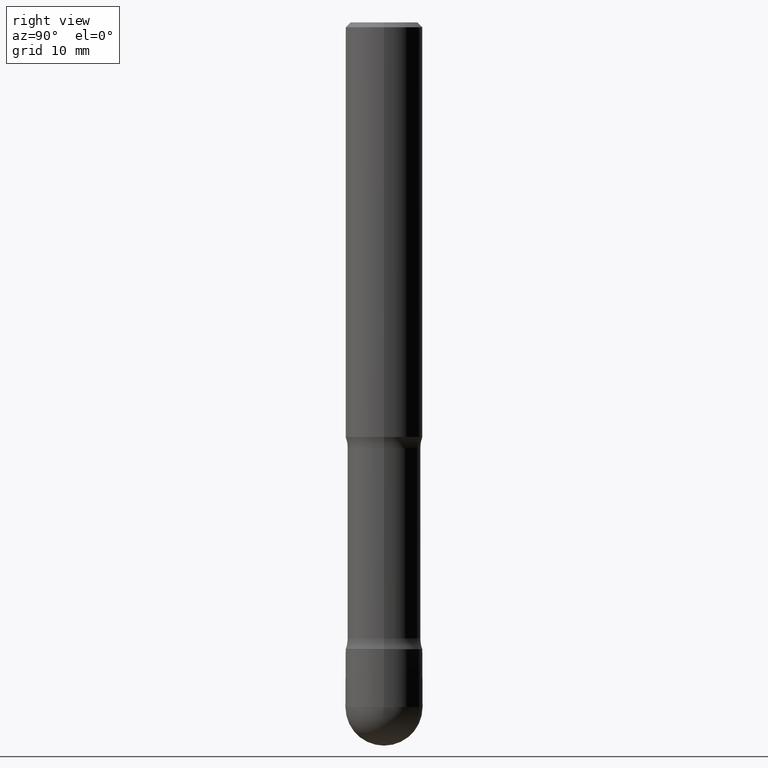
[diagram: clean part render]
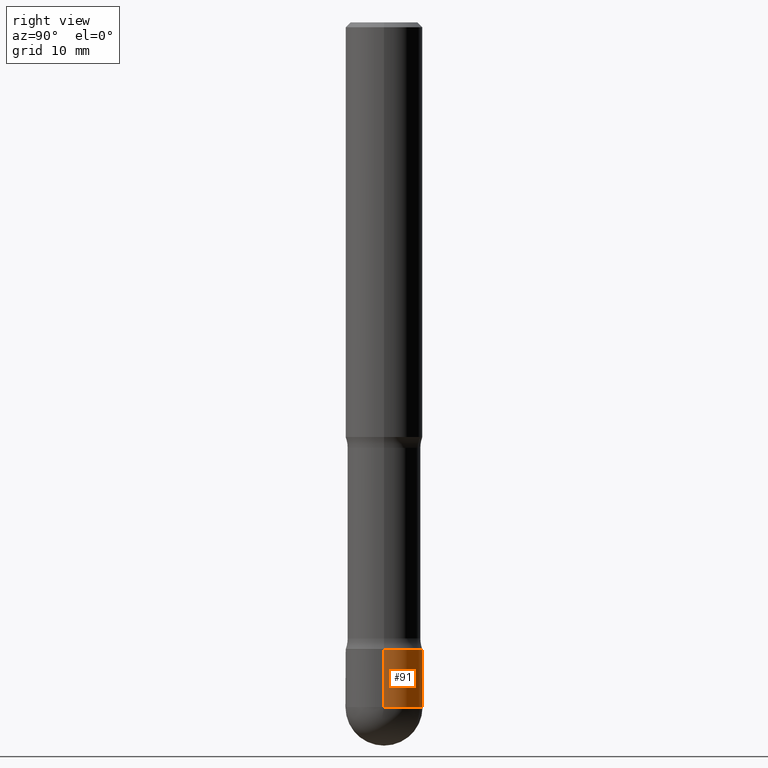
[diagram: same view with one face highlighted and labeled with its STEP entity id]
A machine part, right view. The second image highlights one B-rep face of the part: STEP entity #91.
In plain terms, the highlighted cylindrical surface (partial cylindrical patch) has radius 4.0005 mm, axis along (-0, 0, 1).
Its self-contained STEP definition (entity closure, byte-faithful):
#8 = CARTESIAN_POINT ( 'NONE',  ( 0.1574999999999995015, -1.003486651596907730E-14, -2.559099999999999486 ) ) ;
#17 = LINE ( 'NONE', #409, #326 ) ;
#29 = ORIENTED_EDGE ( 'NONE', *, *, #140, .T. ) ;
#38 = CARTESIAN_POINT ( 'NONE',  ( 0.1574999999999995015, -1.099816621735583536E-15, 7.679978421878574211E-30 ) ) ;
#82 = CARTESIAN_POINT ( 'NONE',  ( 0.1574999999999995015, -1.044721046208645143E-14, -2.795299999999999674 ) ) ;
#84 = CARTESIAN_POINT ( 'NONE',  ( 1.119104808822223473E-15, 0.1574999999999899258, -2.795300000000000118 ) ) ;
#91 = ADVANCED_FACE ( 'NONE', ( #294 ), #262, .T. ) ;
#101 = ORIENTED_EDGE ( 'NONE', *, *, #264, .F. ) ;
#111 = CIRCLE ( 'NONE', #334, 0.1574999999999995015 ) ;
#114 = EDGE_CURVE ( 'NONE', #427, #316, #431, .T. ) ;
#115 = ORIENTED_EDGE ( 'NONE', *, *, #551, .T. ) ;
#140 = EDGE_CURVE ( 'NONE', #301, #271, #17, .T. ) ;
#153 = VERTEX_POINT ( 'NONE', #84 ) ;
#166 = CARTESIAN_POINT ( 'NONE',  ( -0.1574999999999995015, -8.228289031528713448E-15, -2.795299999999999674 ) ) ;
#203 = EDGE_LOOP ( 'NONE', ( #292, #29, #101, #385, #115 ) ) ;
#220 = DIRECTION ( 'NONE',  ( 1.000000000000000000, -6.982962677686271444E-15, 0.000000000000000000 ) ) ;
#230 = DIRECTION ( 'NONE',  ( -2.445468806185136597E-29, 3.491481338843145583E-15, 1.000000000000000000 ) ) ;
#262 = CYLINDRICAL_SURFACE ( 'NONE', #373, 0.1574999999999995015 ) ;
#264 = EDGE_CURVE ( 'NONE', #316, #271, #111, .T. ) ;
#271 = VERTEX_POINT ( 'NONE', #344 ) ;
#292 = ORIENTED_EDGE ( 'NONE', *, *, #422, .T. ) ;
#294 = FACE_OUTER_BOUND ( 'NONE', #203, .T. ) ;
#299 = CIRCLE ( 'NONE', #433, 0.1574999999999995015 ) ;
#300 = DIRECTION ( 'NONE',  ( -2.445468806185136597E-29, 3.491481338843145583E-15, 1.000000000000000000 ) ) ;
#301 = VERTEX_POINT ( 'NONE', #166 ) ;
#304 = DIRECTION ( 'NONE',  ( 1.000000000000000000, -6.982962677686266711E-15, 4.876176775795935793E-29 ) ) ;
#315 = AXIS2_PLACEMENT_3D ( 'NONE', #541, #230, #348 ) ;
#316 = VERTEX_POINT ( 'NONE', #8 ) ;
#317 = CARTESIAN_POINT ( 'NONE',  ( 6.258199221908381703E-29, -8.935049894233492186E-15, -2.559099999999999486 ) ) ;
#326 = VECTOR ( 'NONE', #484, 39.37007874015748143 ) ;
#334 = AXIS2_PLACEMENT_3D ( 'NONE', #317, #435, #220 ) ;
#344 = CARTESIAN_POINT ( 'NONE',  ( -0.1574999999999995015, -8.228289031528713448E-15, -2.559099999999999486 ) ) ;
#348 = DIRECTION ( 'NONE',  ( 1.000000000000000000, -6.982962677686271444E-15, 0.000000000000000000 ) ) ;
#373 = AXIS2_PLACEMENT_3D ( 'NONE', #447, #518, #304 ) ;
#385 = ORIENTED_EDGE ( 'NONE', *, *, #114, .F. ) ;
#392 = DIRECTION ( 'NONE',  ( 1.000000000000000000, -6.982962677686271444E-15, 0.000000000000000000 ) ) ;
#393 = DIRECTION ( 'NONE',  ( -2.445468806185136877E-29, 3.491481338843145188E-15, 1.000000000000000000 ) ) ;
#409 = CARTESIAN_POINT ( 'NONE',  ( -0.1574999999999995015, 1.119104808822154251E-15, -7.747322767151453163E-30 ) ) ;
#422 = EDGE_CURVE ( 'NONE', #153, #301, #299, .T. ) ;
#427 = VERTEX_POINT ( 'NONE', #82 ) ;
#431 = LINE ( 'NONE', #38, #504 ) ;
#433 = AXIS2_PLACEMENT_3D ( 'NONE', #520, #300, #392 ) ;
#435 = DIRECTION ( 'NONE',  ( -2.445468806185136597E-29, 3.491481338843145583E-15, 1.000000000000000000 ) ) ;
#447 = CARTESIAN_POINT ( 'NONE',  ( 0.000000000000000000, 0.000000000000000000, 0.000000000000000000 ) ) ;
#484 = DIRECTION ( 'NONE',  ( -2.445468806185136877E-29, 3.491481338843145188E-15, 1.000000000000000000 ) ) ;
#504 = VECTOR ( 'NONE', #393, 39.37007874015748143 ) ;
#518 = DIRECTION ( 'NONE',  ( -2.445468806185136597E-29, 3.491481338843145583E-15, 1.000000000000000000 ) ) ;
#520 = CARTESIAN_POINT ( 'NONE',  ( 6.835818953929311707E-29, -9.759737786468243605E-15, -2.795299999999999674 ) ) ;
#541 = CARTESIAN_POINT ( 'NONE',  ( 6.835818953929311707E-29, -9.759737786468243605E-15, -2.795299999999999674 ) ) ;
#551 = EDGE_CURVE ( 'NONE', #427, #153, #555, .T. ) ;
#555 = CIRCLE ( 'NONE', #315, 0.1574999999999995015 ) ;